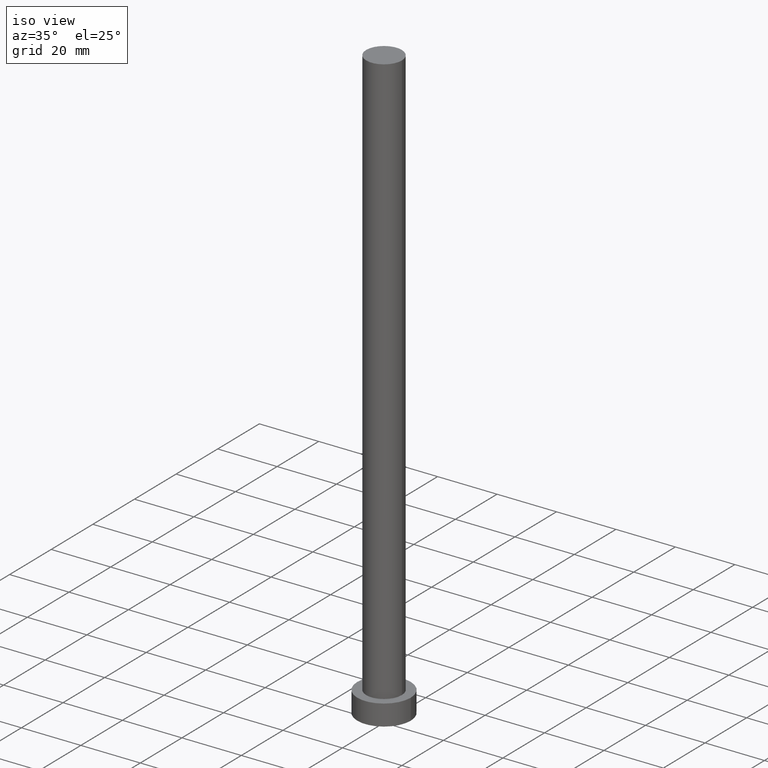
[diagram: clean part render]
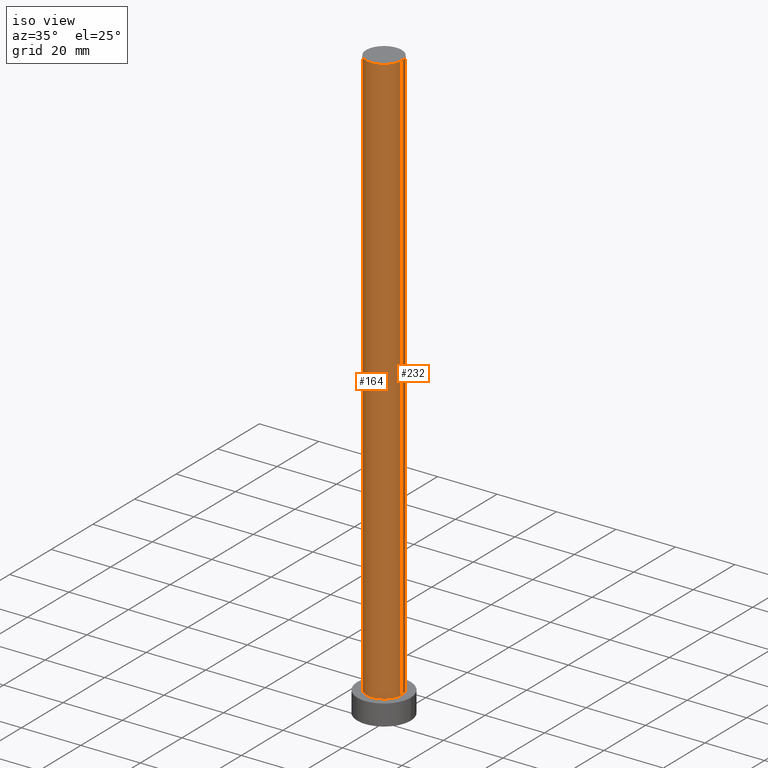
[diagram: same view with one multi-face feature highlighted, each face labeled with its STEP entity id]
A machine part, iso view. The highlighted faces form ONE feature: a constant-radius fillet chain: 2 tangent blend faces with common blend radius 6 mm. The faces share edges in the B-rep.
Their STEP definitions:
[1] entity #164 (Cylinder):
#4 = ORIENTED_EDGE ( 'NONE', *, *, #193, .T. ) ;
#10 = EDGE_CURVE ( 'NONE', #35, #150, #131, .T. ) ;
#16 = AXIS2_PLACEMENT_3D ( 'NONE', #250, #134, #120 ) ;
#27 = CARTESIAN_POINT ( 'NONE',  ( 6.000000000000000888, 7.347880794884120722E-16, 7.000000000000000000 ) ) ;
#29 = VERTEX_POINT ( 'NONE', #182 ) ;
#30 = DIRECTION ( 'NONE',  ( -0.000000000000000000, -0.000000000000000000, -1.000000000000000000 ) ) ;
#35 = VERTEX_POINT ( 'NONE', #154 ) ;
#39 = LINE ( 'NONE', #96, #237 ) ;
#45 = DIRECTION ( 'NONE',  ( 0.000000000000000000, 0.000000000000000000, 1.000000000000000000 ) ) ;
#48 = EDGE_CURVE ( 'NONE', #204, #35, #125, .T. ) ;
#50 = AXIS2_PLACEMENT_3D ( 'NONE', #217, #45, #235 ) ;
#54 = DIRECTION ( 'NONE',  ( -1.000000000000000000, 0.000000000000000000, 0.000000000000000000 ) ) ;
#75 = DIRECTION ( 'NONE',  ( -0.000000000000000000, -0.000000000000000000, -1.000000000000000000 ) ) ;
#83 = EDGE_LOOP ( 'NONE', ( #91, #146, #4, #126 ) ) ;
#91 = ORIENTED_EDGE ( 'NONE', *, *, #10, .F. ) ;
#96 = CARTESIAN_POINT ( 'NONE',  ( -6.000000000000000888, 0.000000000000000000, 200.0000000000000000 ) ) ;
#111 = CARTESIAN_POINT ( 'NONE',  ( -6.000000000000000888, 0.000000000000000000, 200.0000000000000000 ) ) ;
#116 = CARTESIAN_POINT ( 'NONE',  ( 6.000000000000000888, 7.347880794884120722E-16, 200.0000000000000000 ) ) ;
#120 = DIRECTION ( 'NONE',  ( 1.000000000000000000, 0.000000000000000000, 0.000000000000000000 ) ) ;
#123 = VECTOR ( 'NONE', #127, 1000.000000000000000 ) ;
#125 = CIRCLE ( 'NONE', #16, 6.000000000000000888 ) ;
#126 = ORIENTED_EDGE ( 'NONE', *, *, #135, .T. ) ;
#127 = DIRECTION ( 'NONE',  ( -0.000000000000000000, -0.000000000000000000, -1.000000000000000000 ) ) ;
#131 = LINE ( 'NONE', #116, #123 ) ;
#134 = DIRECTION ( 'NONE',  ( 0.000000000000000000, 0.000000000000000000, 1.000000000000000000 ) ) ;
#135 = EDGE_CURVE ( 'NONE', #29, #150, #177, .T. ) ;
#142 = CYLINDRICAL_SURFACE ( 'NONE', #210, 6.000000000000000888 ) ;
#146 = ORIENTED_EDGE ( 'NONE', *, *, #48, .F. ) ;
#150 = VERTEX_POINT ( 'NONE', #27 ) ;
#154 = CARTESIAN_POINT ( 'NONE',  ( 6.000000000000000888, 7.347880794884120722E-16, 200.0000000000000000 ) ) ;
#164 = ADVANCED_FACE ( 'NONE', ( #178 ), #142, .T. ) ;
#177 = CIRCLE ( 'NONE', #50, 6.000000000000000888 ) ;
#178 = FACE_OUTER_BOUND ( 'NONE', #83, .T. ) ;
#182 = CARTESIAN_POINT ( 'NONE',  ( -6.000000000000000888, 0.000000000000000000, 7.000000000000000000 ) ) ;
#193 = EDGE_CURVE ( 'NONE', #204, #29, #39, .T. ) ;
#204 = VERTEX_POINT ( 'NONE', #111 ) ;
#210 = AXIS2_PLACEMENT_3D ( 'NONE', #220, #30, #54 ) ;
#217 = CARTESIAN_POINT ( 'NONE',  ( 0.000000000000000000, 0.000000000000000000, 7.000000000000000000 ) ) ;
#220 = CARTESIAN_POINT ( 'NONE',  ( 0.000000000000000000, 0.000000000000000000, 200.0000000000000000 ) ) ;
#235 = DIRECTION ( 'NONE',  ( 1.000000000000000000, 0.000000000000000000, 0.000000000000000000 ) ) ;
#237 = VECTOR ( 'NONE', #75, 1000.000000000000000 ) ;
#250 = CARTESIAN_POINT ( 'NONE',  ( 0.000000000000000000, 0.000000000000000000, 200.0000000000000000 ) ) ;
[2] entity #232 (Cylinder):
#10 = EDGE_CURVE ( 'NONE', #35, #150, #131, .T. ) ;
#13 = CARTESIAN_POINT ( 'NONE',  ( 0.000000000000000000, 0.000000000000000000, 7.000000000000000000 ) ) ;
#24 = CIRCLE ( 'NONE', #33, 6.000000000000000888 ) ;
#27 = CARTESIAN_POINT ( 'NONE',  ( 6.000000000000000888, 7.347880794884120722E-16, 7.000000000000000000 ) ) ;
#29 = VERTEX_POINT ( 'NONE', #182 ) ;
#32 = ORIENTED_EDGE ( 'NONE', *, *, #10, .T. ) ;
#33 = AXIS2_PLACEMENT_3D ( 'NONE', #13, #238, #149 ) ;
#35 = VERTEX_POINT ( 'NONE', #154 ) ;
#39 = LINE ( 'NONE', #96, #237 ) ;
#47 = DIRECTION ( 'NONE',  ( 1.000000000000000000, 0.000000000000000000, 0.000000000000000000 ) ) ;
#65 = DIRECTION ( 'NONE',  ( 0.000000000000000000, 0.000000000000000000, 1.000000000000000000 ) ) ;
#69 = FACE_OUTER_BOUND ( 'NONE', #242, .T. ) ;
#75 = DIRECTION ( 'NONE',  ( -0.000000000000000000, -0.000000000000000000, -1.000000000000000000 ) ) ;
#87 = ORIENTED_EDGE ( 'NONE', *, *, #193, .F. ) ;
#96 = CARTESIAN_POINT ( 'NONE',  ( -6.000000000000000888, 0.000000000000000000, 200.0000000000000000 ) ) ;
#111 = CARTESIAN_POINT ( 'NONE',  ( -6.000000000000000888, 0.000000000000000000, 200.0000000000000000 ) ) ;
#116 = CARTESIAN_POINT ( 'NONE',  ( 6.000000000000000888, 7.347880794884120722E-16, 200.0000000000000000 ) ) ;
#118 = DIRECTION ( 'NONE',  ( -1.000000000000000000, 0.000000000000000000, 0.000000000000000000 ) ) ;
#123 = VECTOR ( 'NONE', #127, 1000.000000000000000 ) ;
#127 = DIRECTION ( 'NONE',  ( -0.000000000000000000, -0.000000000000000000, -1.000000000000000000 ) ) ;
#131 = LINE ( 'NONE', #116, #123 ) ;
#149 = DIRECTION ( 'NONE',  ( 1.000000000000000000, 0.000000000000000000, 0.000000000000000000 ) ) ;
#150 = VERTEX_POINT ( 'NONE', #27 ) ;
#154 = CARTESIAN_POINT ( 'NONE',  ( 6.000000000000000888, 7.347880794884120722E-16, 200.0000000000000000 ) ) ;
#155 = EDGE_CURVE ( 'NONE', #35, #204, #189, .T. ) ;
#163 = CARTESIAN_POINT ( 'NONE',  ( 0.000000000000000000, 0.000000000000000000, 200.0000000000000000 ) ) ;
#170 = CARTESIAN_POINT ( 'NONE',  ( 0.000000000000000000, 0.000000000000000000, 200.0000000000000000 ) ) ;
#182 = CARTESIAN_POINT ( 'NONE',  ( -6.000000000000000888, 0.000000000000000000, 7.000000000000000000 ) ) ;
#189 = CIRCLE ( 'NONE', #219, 6.000000000000000888 ) ;
#193 = EDGE_CURVE ( 'NONE', #204, #29, #39, .T. ) ;
#201 = AXIS2_PLACEMENT_3D ( 'NONE', #170, #205, #118 ) ;
#202 = ORIENTED_EDGE ( 'NONE', *, *, #155, .F. ) ;
#203 = CYLINDRICAL_SURFACE ( 'NONE', #201, 6.000000000000000888 ) ;
#204 = VERTEX_POINT ( 'NONE', #111 ) ;
#205 = DIRECTION ( 'NONE',  ( -0.000000000000000000, -0.000000000000000000, -1.000000000000000000 ) ) ;
#213 = EDGE_CURVE ( 'NONE', #150, #29, #24, .T. ) ;
#219 = AXIS2_PLACEMENT_3D ( 'NONE', #163, #65, #47 ) ;
#223 = ORIENTED_EDGE ( 'NONE', *, *, #213, .T. ) ;
#232 = ADVANCED_FACE ( 'NONE', ( #69 ), #203, .T. ) ;
#237 = VECTOR ( 'NONE', #75, 1000.000000000000000 ) ;
#238 = DIRECTION ( 'NONE',  ( 0.000000000000000000, 0.000000000000000000, 1.000000000000000000 ) ) ;
#242 = EDGE_LOOP ( 'NONE', ( #202, #32, #223, #87 ) ) ;